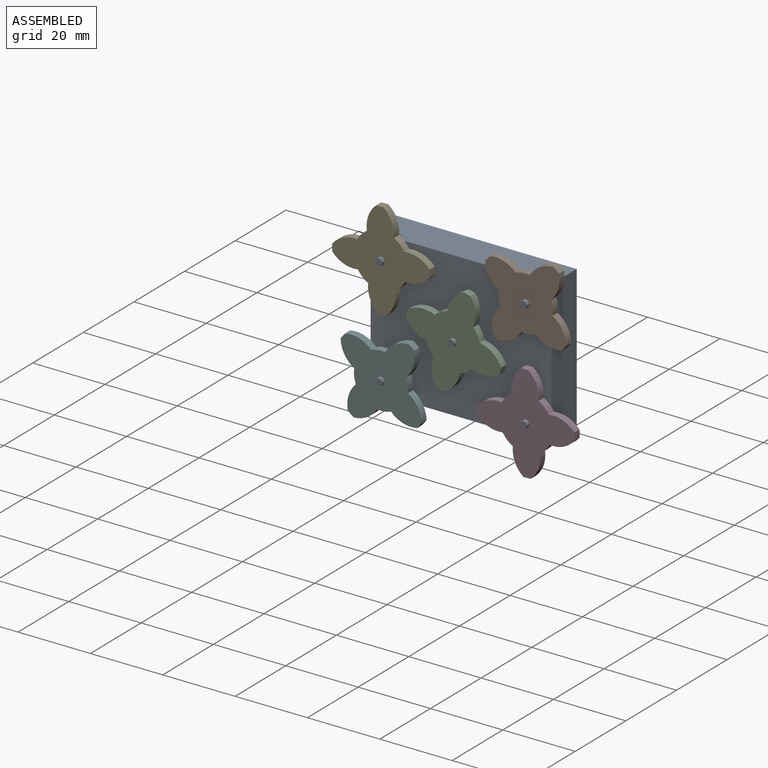
[diagram: assembled view]
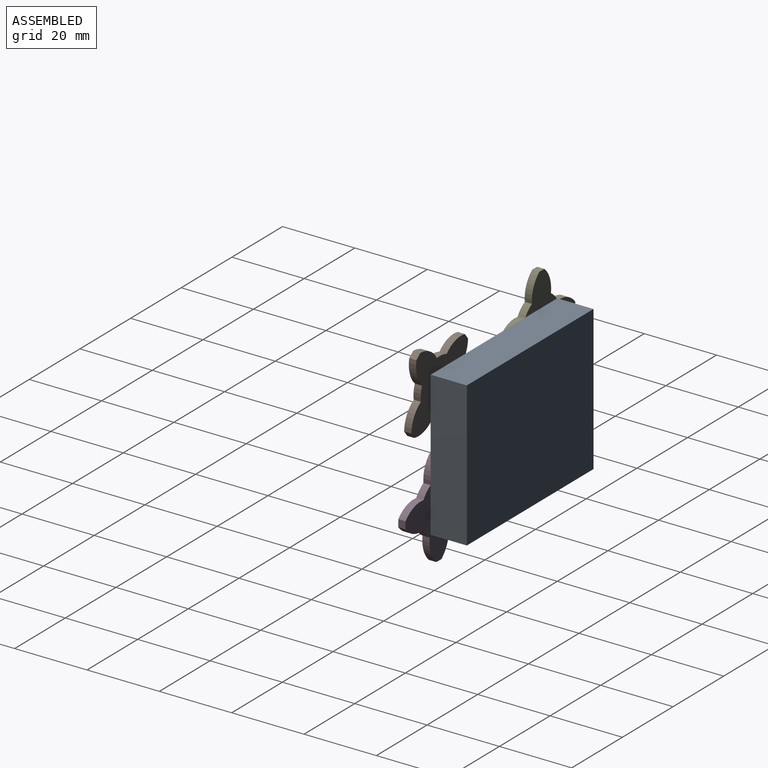
[diagram: assembled view, second angle]
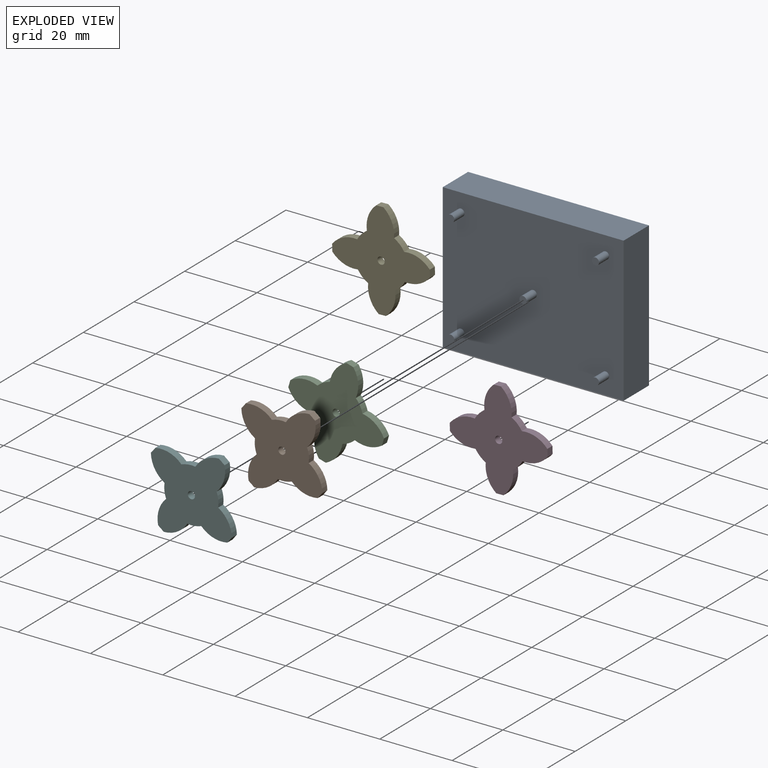
[diagram: exploded view]
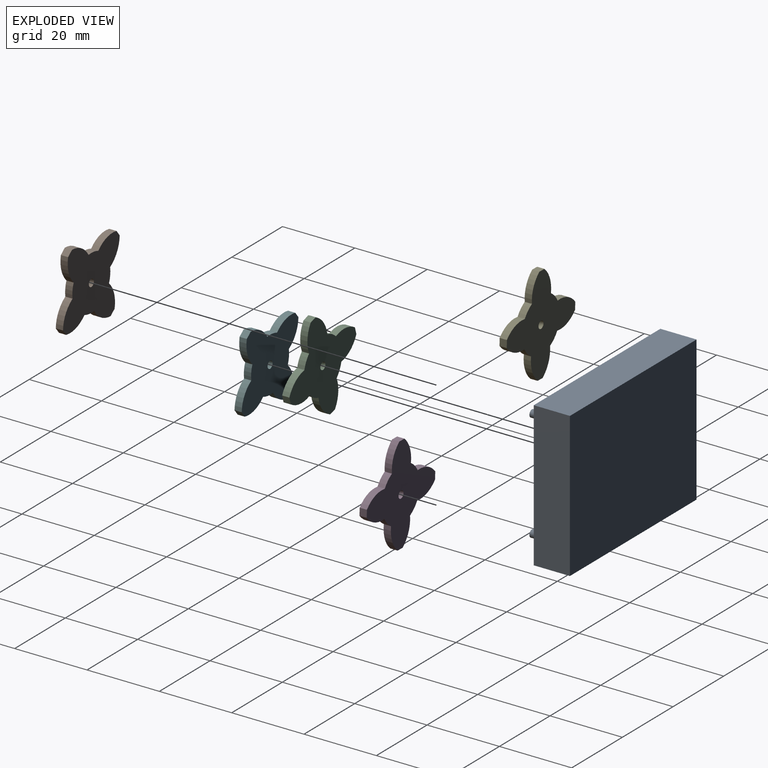
[diagram: exploded view, second angle]
ASSEMBLY  parts=6 mates=5
PART A: 16 faces, bbox 50x14x40 mm
  f0: plane 50x40mm, normal (0,1,0), area 2000mm2, adj f1,f3,f4,f5
  f1: plane 50x10mm, normal (0,0,1), area 500mm2, adj f0,f2,f4,f5
  f2: plane 50x40mm, normal (0,-1,0), area 1984.3mm2, adj f1,f3,f4,f5,f6,f8,f10,f12
  f3: plane 50x10mm, normal (0,0,-1), area 500mm2, adj f0,f2,f4,f5
  f4: plane 40x10mm, normal (1,0,0), area 400mm2, adj f0,f1,f2,f3
  f5: plane 40x10mm, normal (-1,0,0), area 400mm2, adj f0,f1,f2,f3
  f6: cylinder r=1mm len=4mm, axis (0,1,0), area 25.1mm2, adj f2,f7
  f7: plane 2x2mm, normal (0,-1,0), area 3.1mm2, adj f6
  f8: cylinder r=1mm len=4mm, axis (0,1,0), area 25.1mm2, adj f2,f9
  f9: plane 2x2mm, normal (0,-1,0), area 3.1mm2, adj f8
  f10: cylinder r=1mm len=4mm, axis (0,1,0), area 25.1mm2, adj f2,f11
  f11: plane 2x2mm, normal (0,-1,0), area 3.1mm2, adj f10
  f12: cylinder r=1mm len=4mm, axis (0,1,0), area 25.1mm2, adj f2,f13
  f13: plane 2x2mm, normal (0,-1,0), area 3.1mm2, adj f12
  f14: cylinder r=1mm len=4mm, axis (0,1,0), area 25.1mm2, adj f2,f15
  f15: plane 2x2mm, normal (0,-1,0), area 3.1mm2, adj f14
PART B: 19 faces, bbox 27x27x2 mm
  f0: cylinder r=7.81mm len=7mm, axis (0,0,-1), area 15.7mm2, adj f1,f15,f16,f17
  f1: cylinder r=7.5mm len=2.75mm, axis (0,0,-1), area 7.9mm2, adj f0,f2,f16,f17
  f2: cylinder r=7.81mm len=7mm, axis (0,0,-1), area 15.7mm2, adj f1,f3,f16,f17
  f3: plane 2x2mm, normal (0,-1,0), area 4mm2, adj f2,f4,f16,f17
  f4: cylinder r=7.81mm len=7mm, axis (0,0,-1), area 15.7mm2, adj f3,f5,f16,f17
  f5: cylinder r=7.5mm len=2.75mm, axis (0,0,-1), area 7.9mm2, adj f4,f6,f16,f17
  f6: cylinder r=7.81mm len=7mm, axis (0,0,-1), area 15.7mm2, adj f5,f7,f16,f17
  f7: plane 2x2mm, normal (1,0,0), area 4mm2, adj f6,f8,f16,f17
  f8: cylinder r=7.81mm len=7mm, axis (0,0,-1), area 15.7mm2, adj f7,f9,f16,f17
  f9: cylinder r=7.5mm len=2.75mm, axis (0,0,-1), area 7.9mm2, adj f8,f10,f16,f17
  f10: cylinder r=7.81mm len=7mm, axis (0,0,-1), area 15.7mm2, adj f9,f11,f16,f17
  f11: plane 2x2mm, normal (0,1,0), area 4mm2, adj f10,f12,f16,f17
  f12: cylinder r=7.81mm len=7mm, axis (0,0,-1), area 15.7mm2, adj f11,f13,f16,f17
  f13: cylinder r=7.5mm len=2.75mm, axis (0,0,-1), area 7.9mm2, adj f12,f14,f16,f17
  f14: cylinder r=7.81mm len=7mm, axis (0,0,-1), area 15.7mm2, adj f13,f15,f16,f17
  f15: plane 2x2mm, normal (-1,0,0), area 4mm2, adj f0,f14,f16,f17
  f16: plane 27x27mm, normal (0,0,1), area 325.4mm2, adj f0,f1,f2,f3,f4,f5,f6,f7
  f17: plane 27x27mm, normal (0,0,-1), area 325.4mm2, adj f0,f1,f2,f3,f4,f5,f6,f7
  f18: cylinder r=1mm len=2mm, axis (0,0,1), area 12.6mm2, adj f16,f17
PART C: same geometry as B
PART D: same geometry as B
PART E: same geometry as B
PART F: same geometry as B
PLACE A t=(-11.62,-0.64,8.1)mm fixed
PLACE B rot(axis=(-0.9,0.31,0.31),96.2deg) t=(8.38,-8.64,23.1)mm
PLACE C rot(axis=(-0.98,0.14,0.14),91.2deg) t=(-11.62,-8.64,8.1)mm
PLACE D rot(axis=(-0.59,0.57,0.57),119.1deg) t=(8.38,-8.64,-6.9)mm
PLACE E rot(axis=(-0.59,0.57,0.57),119.1deg) t=(-31.62,-8.64,23.1)mm
PLACE F rot(axis=(-0.9,0.31,0.31),96.2deg) t=(-31.62,-8.64,-6.9)mm
MATE revolute A.f8 <-> E.f1  axis (0,1,0) through (-31.62,-7.64,23.1)mm
MATE revolute A.f6 <-> C.f1  axis (0,1,0) through (-11.62,-7.64,8.1)mm
MATE revolute A.f14 <-> B.f1  axis (0,1,0) through (8.38,-7.64,23.1)mm
MATE revolute A.f10 <-> F.f1  axis (0,1,0) through (-31.62,-7.64,-6.9)mm
MATE revolute A.f12 <-> D.f1  axis (0,1,0) through (8.38,-7.64,-6.9)mm
